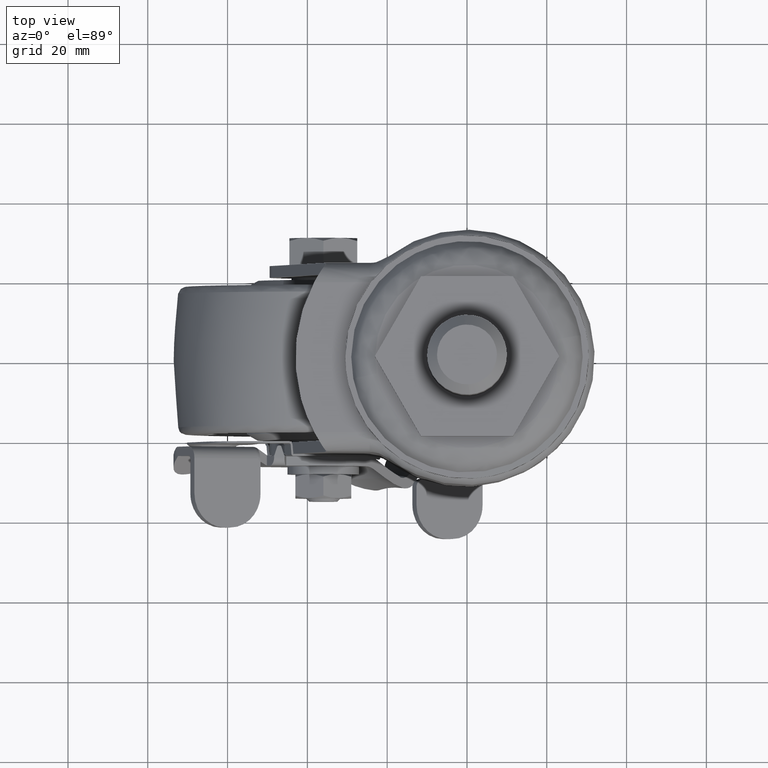
[diagram: clean part render]
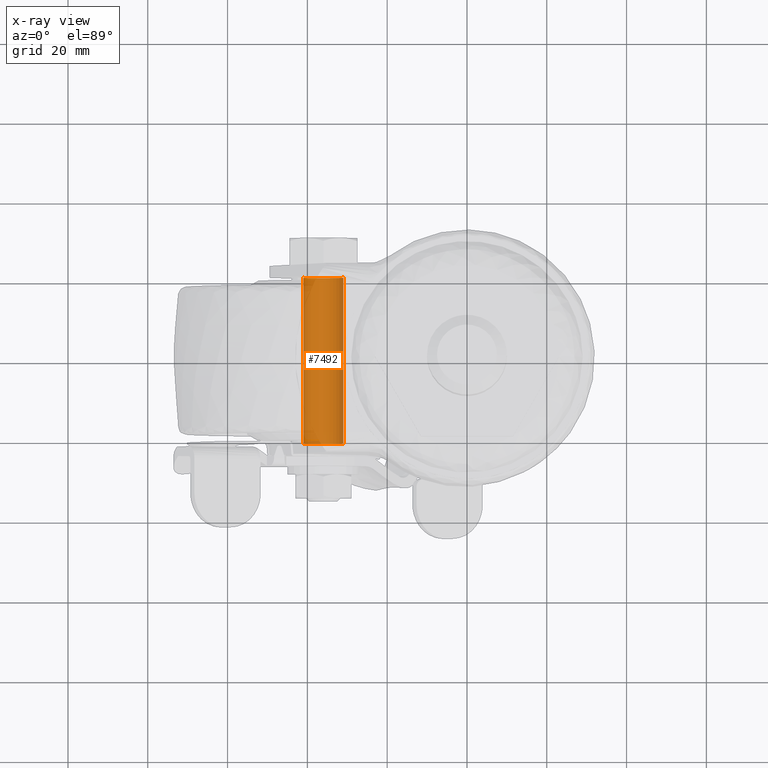
[diagram: x-ray — body ghosted, one internal face saturated and labeled with its STEP entity id]
A machine part, top view, then the same camera in x-ray: the body is ghosted and one INTERNAL B-rep face — a face not visible from any outside direction — is saturated and labeled: STEP entity #7492.
In plain terms, the highlighted face is a freeform B-spline surface patch.
Its self-contained STEP definition (entity closure, byte-faithful):
#7237=CARTESIAN_POINT('',(-35.999985999999900,20.800000000000001,-67.500000000000000));
#7238=VERTEX_POINT('',#7237);
#7239=CARTESIAN_POINT('',(-40.990659992090841,20.800000000000001,-62.805242697975089));
#7240=VERTEX_POINT('',#7239);
#7241=CARTESIAN_POINT('',(-35.999985999999900,20.800000000000001,-67.500000000000000));
#7242=CARTESIAN_POINT('',(-40.703516334244348,20.800000000000004,-67.500000000000000));
#7243=CARTESIAN_POINT('',(-40.990659992090848,20.799999999999997,-62.805242697975089));
#7251=(BOUNDED_CURVE()B_SPLINE_CURVE(2,(#7241,#7242,#7243),.UNSPECIFIED.,.F.,.U.)B_SPLINE_CURVE_WITH_KNOTS((3,3),(0.500000000000000,0.739332962231569),.UNSPECIFIED.)CURVE()GEOMETRIC_REPRESENTATION_ITEM()RATIONAL_B_SPLINE_CURVE((1.0,0.719603993295350,0.976072041650913))REPRESENTATION_ITEM(''));
#7252=EDGE_CURVE('',#7238,#7240,#7251,.T.);
#7254=CARTESIAN_POINT('',(-31.009312007908971,20.800000000000001,-62.194757302024911));
#7255=VERTEX_POINT('',#7254);
#7256=CARTESIAN_POINT('',(-31.009312007908960,20.800000000000004,-62.194757302024939));
#7257=CARTESIAN_POINT('',(-30.999985999999897,20.800000000000004,-62.347236183356252));
#7258=CARTESIAN_POINT('',(-30.999985999999900,20.800000000000001,-62.500000000000000));
#7259=CARTESIAN_POINT('',(-30.999985999999904,20.800000000000001,-67.500000000000000));
#7260=CARTESIAN_POINT('',(-35.999985999999900,20.800000000000001,-67.500000000000000));
#7268=(BOUNDED_CURVE()B_SPLINE_CURVE(2,(#7256,#7257,#7258,#7259,#7260),.UNSPECIFIED.,.F.,.U.)B_SPLINE_CURVE_WITH_KNOTS((3,2,3),(0.239332962231569,0.250000000000000,0.500000000000000),.UNSPECIFIED.)CURVE()GEOMETRIC_REPRESENTATION_ITEM()RATIONAL_B_SPLINE_CURVE((0.976072041650913,0.987502787891198,1.0,0.707106781186548,1.0))REPRESENTATION_ITEM(''));
#7269=EDGE_CURVE('',#7255,#7238,#7268,.T.);
#7426=CARTESIAN_POINT('',(-31.009312007890571,-21.840000000000011,-62.194757302325712));
#7427=CARTESIAN_POINT('',(-30.704069310216290,-21.840000000000003,-67.185431294435048));
#7428=CARTESIAN_POINT('',(-35.694743302325612,-21.840000000000011,-67.490673992109336));
#7429=CARTESIAN_POINT('',(-40.685417294434949,-21.840000000000003,-67.795916689783624));
#7430=CARTESIAN_POINT('',(-40.990659992109236,-21.840000000000011,-62.805242697674288));
#7431=CARTESIAN_POINT('',(-31.009312007890571,21.866000000000010,-62.194757302325712));
#7432=CARTESIAN_POINT('',(-30.704069310216290,21.866000000000017,-67.185431294435048));
#7433=CARTESIAN_POINT('',(-35.694743302325612,21.866000000000010,-67.490673992109336));
#7434=CARTESIAN_POINT('',(-40.685417294434949,21.866000000000017,-67.795916689783624));
#7435=CARTESIAN_POINT('',(-40.990659992109236,21.866000000000010,-62.805242697674288));
#7443=(BOUNDED_SURFACE()B_SPLINE_SURFACE(2,1,((#7426,#7431),(#7427,#7432),(#7428,#7433),(#7429,#7434),(#7430,#7435)),.UNSPECIFIED.,.F.,.F.,.U.)B_SPLINE_SURFACE_WITH_KNOTS((3,2,3),(2,2),(0.0,8.284271247461899,16.568542494923800),(0.0,43.706000000000017),.UNSPECIFIED.)GEOMETRIC_REPRESENTATION_ITEM()RATIONAL_B_SPLINE_SURFACE(((1.0,1.0),(0.707106781186548,0.707106781186548),(1.0,1.0),(0.707106781186548,0.707106781186548),(1.0,1.0)))REPRESENTATION_ITEM('')SURFACE());
#7444=ORIENTED_EDGE('',*,*,#7269,.T.);
#7445=ORIENTED_EDGE('',*,*,#7252,.T.);
#7446=CARTESIAN_POINT('',(-40.990659992090841,-20.800000000000001,-62.805242697975082));
#7447=VERTEX_POINT('',#7446);
#7448=CARTESIAN_POINT('',(-40.990659992090841,-20.800000000000001,-62.805242697975082));
#7449=CARTESIAN_POINT('',(-40.990659992090841,20.800000000000001,-62.805242697975082));
#7450=QUASI_UNIFORM_CURVE('',1,(#7448,#7449),.UNSPECIFIED.,.F.,.U.);
#7451=EDGE_CURVE('',#7447,#7240,#7450,.T.);
#7452=ORIENTED_EDGE('',*,*,#7451,.F.);
#7453=CARTESIAN_POINT('',(-35.999985999999900,-20.800000000000001,-67.500000000000000));
#7454=VERTEX_POINT('',#7453);
#7455=CARTESIAN_POINT('',(-35.999985999999900,-20.800000000000001,-67.500000000000000));
#7456=CARTESIAN_POINT('',(-40.703516334244348,-20.800000000000004,-67.500000000000000));
#7457=CARTESIAN_POINT('',(-40.990659992090848,-20.799999999999997,-62.805242697975089));
#7465=(BOUNDED_CURVE()B_SPLINE_CURVE(2,(#7455,#7456,#7457),.UNSPECIFIED.,.F.,.U.)B_SPLINE_CURVE_WITH_KNOTS((3,3),(0.500000000000000,0.739332962231569),.UNSPECIFIED.)CURVE()GEOMETRIC_REPRESENTATION_ITEM()RATIONAL_B_SPLINE_CURVE((1.0,0.719603993295350,0.976072041650913))REPRESENTATION_ITEM(''));
#7466=EDGE_CURVE('',#7454,#7447,#7465,.T.);
#7467=ORIENTED_EDGE('',*,*,#7466,.F.);
#7468=CARTESIAN_POINT('',(-31.009312007908971,-20.800000000000001,-62.194757302024911));
#7469=VERTEX_POINT('',#7468);
#7470=CARTESIAN_POINT('',(-31.009312007908964,-20.800000000000004,-62.194757302024897));
#7471=CARTESIAN_POINT('',(-30.999985999999904,-20.799999999999997,-62.347236183356230));
#7472=CARTESIAN_POINT('',(-30.999985999999900,-20.800000000000001,-62.500000000000000));
#7473=CARTESIAN_POINT('',(-30.999985999999904,-20.800000000000001,-67.500000000000000));
#7474=CARTESIAN_POINT('',(-35.999985999999900,-20.800000000000001,-67.500000000000000));
#7482=(BOUNDED_CURVE()B_SPLINE_CURVE(2,(#7470,#7471,#7472,#7473,#7474),.UNSPECIFIED.,.F.,.U.)B_SPLINE_CURVE_WITH_KNOTS((3,2,3),(0.239332962231568,0.250000000000000,0.500000000000000),.UNSPECIFIED.)CURVE()GEOMETRIC_REPRESENTATION_ITEM()RATIONAL_B_SPLINE_CURVE((0.976072041650913,0.987502787891198,1.0,0.707106781186548,1.0))REPRESENTATION_ITEM(''));
#7483=EDGE_CURVE('',#7469,#7454,#7482,.T.);
#7484=ORIENTED_EDGE('',*,*,#7483,.F.);
#7485=CARTESIAN_POINT('',(-31.009312007908971,-20.800000000000001,-62.194757302024911));
#7486=CARTESIAN_POINT('',(-31.009312007908971,20.800000000000001,-62.194757302024911));
#7487=QUASI_UNIFORM_CURVE('',1,(#7485,#7486),.UNSPECIFIED.,.F.,.U.);
#7488=EDGE_CURVE('',#7469,#7255,#7487,.T.);
#7489=ORIENTED_EDGE('',*,*,#7488,.T.);
#7490=EDGE_LOOP('',(#7444,#7445,#7452,#7467,#7484,#7489));
#7491=FACE_OUTER_BOUND('',#7490,.T.);
#7492=ADVANCED_FACE('',(#7491),#7443,.F.);